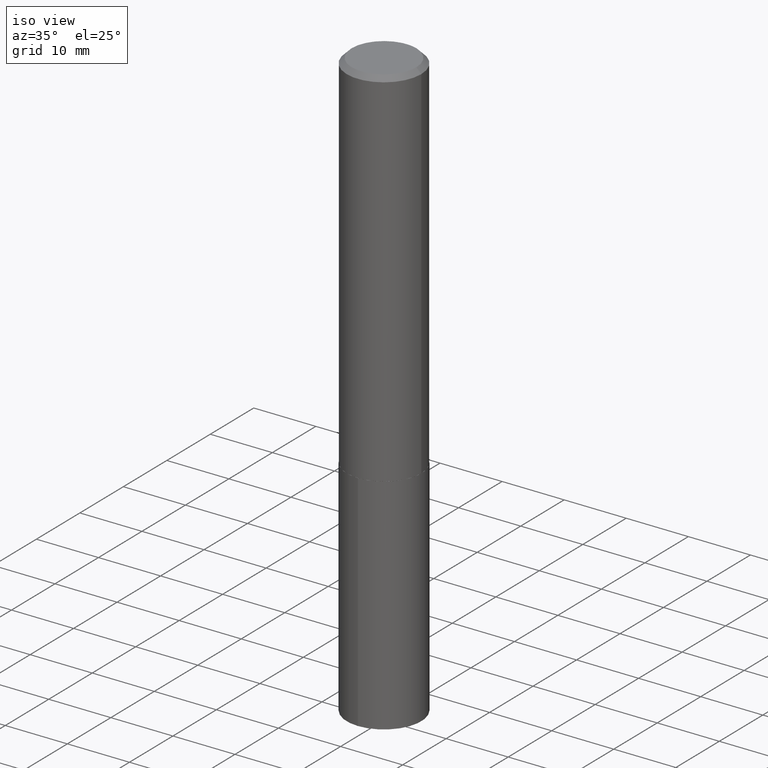
[diagram: clean part render]
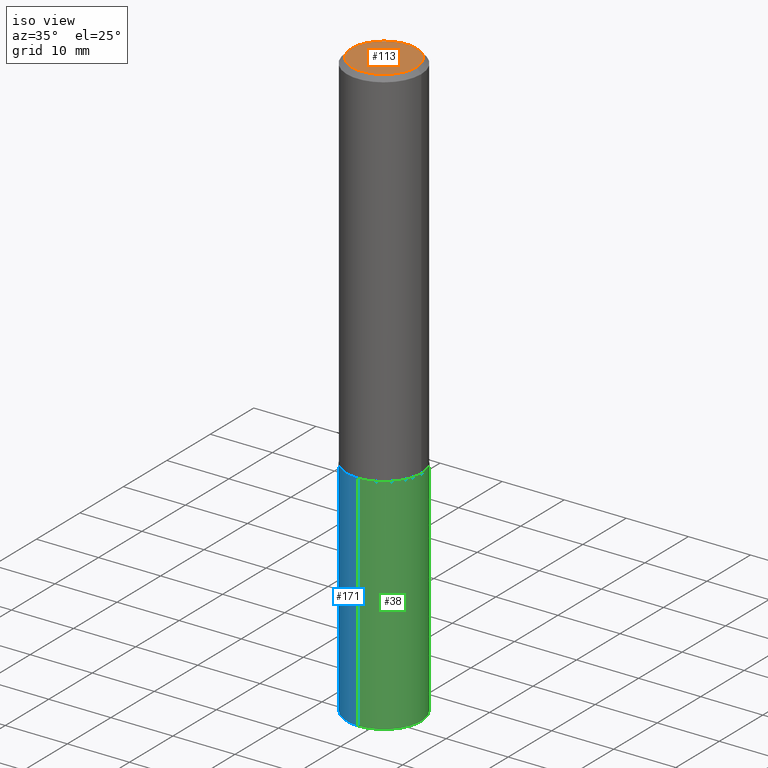
[diagram: same view with three faces highlighted in distinct colors, each labeled with its STEP entity id]
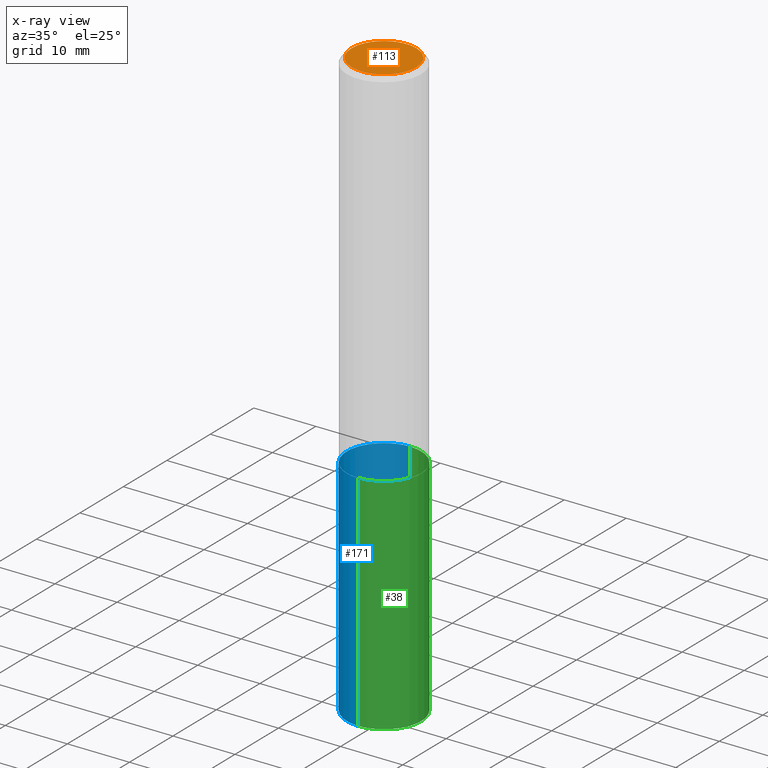
[diagram: x-ray of the same camera — body ghosted, the three highlighted faces saturated]
A machine part, iso view with three faces highlighted in distinct colors.
The next image is the same camera in x-ray (body ghosted, the three faces saturated) — at least one of them is partly hidden behind the body in this view.
Their STEP definitions:

[orange] entity #113 — the highlighted planar face has unit normal (0, -0, -1).
#18 = CARTESIAN_POINT ( 'NONE',  ( -5.892338936576605744E-47, 8.412698369802303245E-33, 2.409492577322419881E-18 ) ) ;
#28 = DIRECTION ( 'NONE',  ( 1.000000000000000000, -6.982962677686266711E-15, 4.876118559169178830E-29 ) ) ;
#64 = AXIS2_PLACEMENT_3D ( 'NONE', #196, #87, #28 ) ;
#74 = EDGE_LOOP ( 'NONE', ( #296, #123 ) ) ;
#87 = DIRECTION ( 'NONE',  ( -2.445468806185136597E-29, 3.491481338843145583E-15, 1.000000000000000000 ) ) ;
#93 = DIRECTION ( 'NONE',  ( -2.445468806185136597E-29, 3.491481338843145583E-15, 1.000000000000000000 ) ) ;
#103 = DIRECTION ( 'NONE',  ( 2.438088387897960049E-29, -3.491481338843145188E-15, -1.000000000000000000 ) ) ;
#113 = ADVANCED_FACE ( 'NONE', ( #270 ), #216, .F. ) ;
#123 = ORIENTED_EDGE ( 'NONE', *, *, #240, .T. ) ;
#149 = VERTEX_POINT ( 'NONE', #315 ) ;
#150 = AXIS2_PLACEMENT_3D ( 'NONE', #231, #93, #167 ) ;
#156 = EDGE_CURVE ( 'NONE', #149, #271, #298, .T. ) ;
#167 = DIRECTION ( 'NONE',  ( 1.000000000000000000, -6.982962677686266711E-15, 4.876118559169178830E-29 ) ) ;
#180 = CIRCLE ( 'NONE', #64, 0.2049499999999999933 ) ;
#196 = CARTESIAN_POINT ( 'NONE',  ( -1.178467787315321149E-46, 1.682539673960460649E-32, 4.818985154644839761E-18 ) ) ;
#200 = AXIS2_PLACEMENT_3D ( 'NONE', #18, #103, #210 ) ;
#210 = DIRECTION ( 'NONE',  ( -1.000000000000000000, 6.982962677686265922E-15, -4.876176775795935793E-29 ) ) ;
#216 = PLANE ( 'NONE',  #200 ) ;
#231 = CARTESIAN_POINT ( 'NONE',  ( -1.178467787315321149E-46, 1.682539673960460649E-32, 4.818985154644839761E-18 ) ) ;
#240 = EDGE_CURVE ( 'NONE', #271, #149, #180, .T. ) ;
#270 = FACE_OUTER_BOUND ( 'NONE', #74, .T. ) ;
#271 = VERTEX_POINT ( 'NONE', #342 ) ;
#296 = ORIENTED_EDGE ( 'NONE', *, *, #156, .T. ) ;
#298 = CIRCLE ( 'NONE', #150, 0.2049499999999999933 ) ;
#315 = CARTESIAN_POINT ( 'NONE',  ( -0.2049499999999999933, 1.485712596711223663E-15, 4.818985154634640807E-18 ) ) ;
#342 = CARTESIAN_POINT ( 'NONE',  ( 0.2049499999999999933, -1.567808741777880040E-15, 4.818985154655325294E-18 ) ) ;

[blue] entity #171 — the highlighted cylindrical surface (partial cylindrical patch) has radius 5.9995 mm, axis along (-0, 0, 1).
#5 = CARTESIAN_POINT ( 'NONE',  ( -1.649375784469439136E-15, -0.2362000000000080979, -2.319199999999999484 ) ) ;
#12 = CARTESIAN_POINT ( 'NONE',  ( -1.649375784469439136E-15, -0.2362000000000080979, -2.319199999999999484 ) ) ;
#16 = CIRCLE ( 'NONE', #258, 0.2361999999999999933 ) ;
#20 = VERTEX_POINT ( 'NONE', #24 ) ;
#24 = CARTESIAN_POINT ( 'NONE',  ( 1.678301941865430350E-15, 0.2361999999999869482, -3.740200000000000635 ) ) ;
#32 = CARTESIAN_POINT ( 'NONE',  ( 5.671531255304570126E-29, -8.097443521045024009E-15, -2.319200000000000372 ) ) ;
#59 = CARTESIAN_POINT ( 'NONE',  ( 5.671531255304570126E-29, -8.097443521045024009E-15, -2.319200000000000372 ) ) ;
#67 = EDGE_CURVE ( 'NONE', #20, #179, #161, .T. ) ;
#77 = LINE ( 'NONE', #12, #94 ) ;
#94 = VECTOR ( 'NONE', #139, 39.37007874015748143 ) ;
#100 = AXIS2_PLACEMENT_3D ( 'NONE', #32, #141, #285 ) ;
#111 = CIRCLE ( 'NONE', #356, 0.2361999999999999933 ) ;
#120 = DIRECTION ( 'NONE',  ( -2.444432578575813081E-29, 3.492965275758109629E-15, 1.000000000000000000 ) ) ;
#122 = EDGE_CURVE ( 'NONE', #205, #177, #77, .T. ) ;
#139 = DIRECTION ( 'NONE',  ( -2.444432578575813362E-29, 3.492965275758110023E-15, 1.000000000000000000 ) ) ;
#141 = DIRECTION ( 'NONE',  ( -2.444432578575813081E-29, 3.492965275758109629E-15, 1.000000000000000000 ) ) ;
#142 = EDGE_CURVE ( 'NONE', #179, #177, #16, .T. ) ;
#143 = FACE_OUTER_BOUND ( 'NONE', #357, .T. ) ;
#151 = ORIENTED_EDGE ( 'NONE', *, *, #224, .T. ) ;
#154 = DIRECTION ( 'NONE',  ( -2.444432578575813362E-29, 3.492965275758110023E-15, 1.000000000000000000 ) ) ;
#161 = LINE ( 'NONE', #221, #212 ) ;
#162 = ORIENTED_EDGE ( 'NONE', *, *, #142, .F. ) ;
#170 = CYLINDRICAL_SURFACE ( 'NONE', #100, 0.2361999999999999933 ) ;
#171 = ADVANCED_FACE ( 'NONE', ( #143 ), #170, .T. ) ;
#177 = VERTEX_POINT ( 'NONE', #5 ) ;
#179 = VERTEX_POINT ( 'NONE', #197 ) ;
#186 = ORIENTED_EDGE ( 'NONE', *, *, #67, .F. ) ;
#197 = CARTESIAN_POINT ( 'NONE',  ( 1.678301941865448296E-15, 0.2361999999999919442, -2.319200000000001261 ) ) ;
#205 = VERTEX_POINT ( 'NONE', #257 ) ;
#212 = VECTOR ( 'NONE', #154, 39.37007874015748143 ) ;
#221 = CARTESIAN_POINT ( 'NONE',  ( 1.678301941865413192E-15, 0.2361999999999919164, -2.319200000000001261 ) ) ;
#224 = EDGE_CURVE ( 'NONE', #20, #205, #111, .T. ) ;
#225 = DIRECTION ( 'NONE',  ( -2.444432578575813081E-29, 3.492965275758109629E-15, 1.000000000000000000 ) ) ;
#256 = DIRECTION ( 'NONE',  ( -6.982962677686265922E-15, -1.000000000000000000, 3.469747663417777397E-15 ) ) ;
#257 = CARTESIAN_POINT ( 'NONE',  ( -1.649375784469404426E-15, -0.2362000000000130384, -3.740199999999998415 ) ) ;
#258 = AXIS2_PLACEMENT_3D ( 'NONE', #59, #120, #256 ) ;
#285 = DIRECTION ( 'NONE',  ( -6.982962677686265922E-15, -1.000000000000000000, 3.469747663417777397E-15 ) ) ;
#317 = CARTESIAN_POINT ( 'NONE',  ( 9.145069949460798922E-29, -1.306094717789729587E-14, -3.740199999999999747 ) ) ;
#324 = ORIENTED_EDGE ( 'NONE', *, *, #122, .T. ) ;
#345 = DIRECTION ( 'NONE',  ( -6.982962677686265922E-15, -1.000000000000000000, 4.626330217890369336E-15 ) ) ;
#356 = AXIS2_PLACEMENT_3D ( 'NONE', #317, #225, #345 ) ;
#357 = EDGE_LOOP ( 'NONE', ( #186, #151, #324, #162 ) ) ;

[green] entity #38 — the highlighted cylindrical surface (partial cylindrical patch) has radius 5.9995 mm, axis along (-0, 0, 1).
#5 = CARTESIAN_POINT ( 'NONE',  ( -1.649375784469439136E-15, -0.2362000000000080979, -2.319199999999999484 ) ) ;
#12 = CARTESIAN_POINT ( 'NONE',  ( -1.649375784469439136E-15, -0.2362000000000080979, -2.319199999999999484 ) ) ;
#20 = VERTEX_POINT ( 'NONE', #24 ) ;
#24 = CARTESIAN_POINT ( 'NONE',  ( 1.678301941865430350E-15, 0.2361999999999869482, -3.740200000000000635 ) ) ;
#29 = AXIS2_PLACEMENT_3D ( 'NONE', #312, #208, #47 ) ;
#38 = ADVANCED_FACE ( 'NONE', ( #362 ), #51, .T. ) ;
#47 = DIRECTION ( 'NONE',  ( -6.982962677686265922E-15, -1.000000000000000000, 3.469747663417777397E-15 ) ) ;
#51 = CYLINDRICAL_SURFACE ( 'NONE', #329, 0.2361999999999999933 ) ;
#67 = EDGE_CURVE ( 'NONE', #20, #179, #161, .T. ) ;
#75 = DIRECTION ( 'NONE',  ( -2.444432578575813081E-29, 3.492965275758109629E-15, 1.000000000000000000 ) ) ;
#76 = CIRCLE ( 'NONE', #267, 0.2361999999999999933 ) ;
#77 = LINE ( 'NONE', #12, #94 ) ;
#94 = VECTOR ( 'NONE', #139, 39.37007874015748143 ) ;
#98 = ORIENTED_EDGE ( 'NONE', *, *, #282, .F. ) ;
#112 = CARTESIAN_POINT ( 'NONE',  ( 5.671531255304570126E-29, -8.097443521045024009E-15, -2.319200000000000372 ) ) ;
#122 = EDGE_CURVE ( 'NONE', #205, #177, #77, .T. ) ;
#139 = DIRECTION ( 'NONE',  ( -2.444432578575813362E-29, 3.492965275758110023E-15, 1.000000000000000000 ) ) ;
#154 = DIRECTION ( 'NONE',  ( -2.444432578575813362E-29, 3.492965275758110023E-15, 1.000000000000000000 ) ) ;
#158 = CARTESIAN_POINT ( 'NONE',  ( 9.145069949460798922E-29, -1.306094717789729587E-14, -3.740199999999999747 ) ) ;
#161 = LINE ( 'NONE', #221, #212 ) ;
#177 = VERTEX_POINT ( 'NONE', #5 ) ;
#179 = VERTEX_POINT ( 'NONE', #197 ) ;
#189 = ORIENTED_EDGE ( 'NONE', *, *, #67, .T. ) ;
#197 = CARTESIAN_POINT ( 'NONE',  ( 1.678301941865448296E-15, 0.2361999999999919442, -2.319200000000001261 ) ) ;
#205 = VERTEX_POINT ( 'NONE', #257 ) ;
#208 = DIRECTION ( 'NONE',  ( -2.444432578575813081E-29, 3.492965275758109629E-15, 1.000000000000000000 ) ) ;
#212 = VECTOR ( 'NONE', #154, 39.37007874015748143 ) ;
#221 = CARTESIAN_POINT ( 'NONE',  ( 1.678301941865413192E-15, 0.2361999999999919164, -2.319200000000001261 ) ) ;
#233 = ORIENTED_EDGE ( 'NONE', *, *, #349, .T. ) ;
#250 = DIRECTION ( 'NONE',  ( -2.444432578575813081E-29, 3.492965275758109629E-15, 1.000000000000000000 ) ) ;
#257 = CARTESIAN_POINT ( 'NONE',  ( -1.649375784469404426E-15, -0.2362000000000130384, -3.740199999999998415 ) ) ;
#267 = AXIS2_PLACEMENT_3D ( 'NONE', #158, #75, #272 ) ;
#272 = DIRECTION ( 'NONE',  ( -6.982962677686265922E-15, -1.000000000000000000, 4.626330217890369336E-15 ) ) ;
#282 = EDGE_CURVE ( 'NONE', #177, #179, #291, .T. ) ;
#291 = CIRCLE ( 'NONE', #29, 0.2361999999999999933 ) ;
#305 = EDGE_LOOP ( 'NONE', ( #233, #189, #98, #309 ) ) ;
#309 = ORIENTED_EDGE ( 'NONE', *, *, #122, .F. ) ;
#312 = CARTESIAN_POINT ( 'NONE',  ( 5.671531255304570126E-29, -8.097443521045024009E-15, -2.319200000000000372 ) ) ;
#329 = AXIS2_PLACEMENT_3D ( 'NONE', #112, #250, #337 ) ;
#337 = DIRECTION ( 'NONE',  ( -6.982962677686265922E-15, -1.000000000000000000, 3.469747663417777397E-15 ) ) ;
#349 = EDGE_CURVE ( 'NONE', #205, #20, #76, .T. ) ;
#362 = FACE_OUTER_BOUND ( 'NONE', #305, .T. ) ;